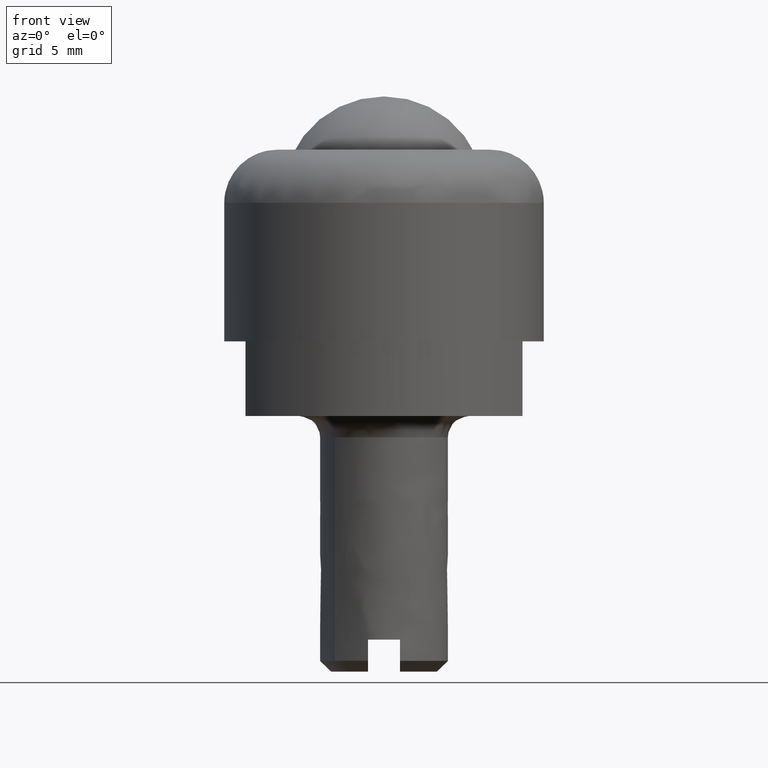
[diagram: clean part render]
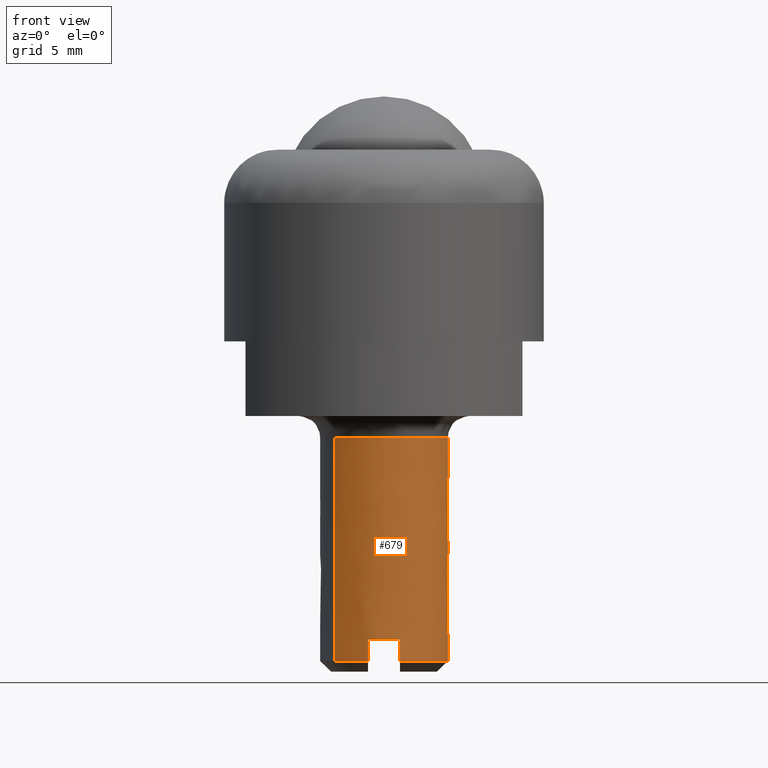
[diagram: same view with one face highlighted and labeled with its STEP entity id]
A machine part, front view. The second image highlights one B-rep face of the part: STEP entity #679.
In plain terms, the highlighted face is a freeform B-spline surface patch.
Its self-contained STEP definition (entity closure, byte-faithful):
#361=CARTESIAN_POINT('',(-2.297376285157198,-1.929264679715385,-4.499999999978565));
#362=VERTEX_POINT('',#361);
#372=CARTESIAN_POINT('',(0.018831363929760,-2.999940896039877,-4.499999999987888));
#373=VERTEX_POINT('',#372);
#374=CARTESIAN_POINT('',(0.018831363929760,-2.999940896039877,-4.499999999987888));
#375=CARTESIAN_POINT('',(-0.262586958928699,-3.001826207138336,-4.499999999986756));
#376=CARTESIAN_POINT('',(-0.729656200041531,-2.938454339764050,-4.499999999984865));
#377=CARTESIAN_POINT('',(-1.282814882015373,-2.725280543365840,-4.499999999982632));
#378=CARTESIAN_POINT('',(-1.801366331915164,-2.426864552362119,-4.499999999980565));
#379=CARTESIAN_POINT('',(-2.112079807213722,-2.150123400164984,-4.499999999979299));
#380=CARTESIAN_POINT('',(-2.297376285157198,-1.929264679715385,-4.499999999978565));
#381=B_SPLINE_CURVE_WITH_KNOTS('',3,(#374,#375,#376,#377,#378,#379,#380),.UNSPECIFIED.,.F.,.U.,(4,1,1,1,4),(7.144191E-009,0.844233579055024,1.400188935668945,1.770827309914230,2.635653062702565),.UNSPECIFIED.);
#382=EDGE_CURVE('',#373,#362,#381,.T.);
#384=CARTESIAN_POINT('',(3.0,0.0,-4.500000000000000));
#385=VERTEX_POINT('',#384);
#386=CARTESIAN_POINT('',(3.0,0.0,-4.500000000000000));
#387=CARTESIAN_POINT('',(3.000006240912432,-0.146673114847659,-4.499999999999990));
#388=CARTESIAN_POINT('',(2.976654959805862,-0.464465626790200,-4.499999999999895));
#389=CARTESIAN_POINT('',(2.880662459033303,-0.870364619055745,-4.499999999999489));
#390=CARTESIAN_POINT('',(2.722713844273737,-1.281629016111951,-4.499999999998861));
#391=CARTESIAN_POINT('',(2.522333899929042,-1.647443423377392,-4.499999999998020));
#392=CARTESIAN_POINT('',(2.221751610431138,-2.034708831147780,-4.499999999996815));
#393=CARTESIAN_POINT('',(1.890219505529803,-2.344723630932625,-4.499999999995429));
#394=CARTESIAN_POINT('',(1.536116594366673,-2.586489488102188,-4.499999999994072));
#395=CARTESIAN_POINT('',(1.175961747360268,-2.769773325008205,-4.499999999992551));
#396=CARTESIAN_POINT('',(0.678488677924484,-2.943703732898391,-4.499999999990571));
#397=CARTESIAN_POINT('',(0.275513082453917,-2.998405812810693,-4.499999999988905));
#398=CARTESIAN_POINT('',(0.018831363929760,-2.999940896039877,-4.499999999987888));
#399=B_SPLINE_CURVE_WITH_KNOTS('',3,(#386,#387,#388,#389,#390,#391,#392,#393,#394,#395,#396,#397,#398),.UNSPECIFIED.,.F.,.U.,(4,1,1,1,1,1,1,1,1,1,4),(0.000000010308079,0.440021902413905,0.953382520647966,1.246734357943187,1.760097363153209,2.200125313358284,2.713471685983104,3.116830370079649,3.483520956439546,3.923549701219097,4.693586707976048),.UNSPECIFIED.);
#400=EDGE_CURVE('',#385,#373,#399,.T.);
#402=CARTESIAN_POINT('',(2.999763132611336,0.037698119658957,-4.499999999975778));
#403=VERTEX_POINT('',#402);
#404=CARTESIAN_POINT('',(2.999763132611336,0.037698119658957,-4.499999999975778));
#405=CARTESIAN_POINT('',(3.0,0.0,-4.500000000000000));
#406=QUASI_UNIFORM_CURVE('',1,(#404,#405),.UNSPECIFIED.,.F.,.U.);
#407=EDGE_CURVE('',#403,#385,#406,.T.);
#456=CARTESIAN_POINT('',(2.297376285157198,1.929264679715385,-4.499999999978565));
#457=VERTEX_POINT('',#456);
#458=CARTESIAN_POINT('',(2.297376285157198,1.929264679715385,-4.499999999978565));
#459=CARTESIAN_POINT('',(2.414567285738554,1.789742229943044,-4.499999999978098));
#460=CARTESIAN_POINT('',(2.580393917142168,1.551114610321021,-4.499999999977429));
#461=CARTESIAN_POINT('',(2.776837341436247,1.157319441589511,-4.499999999976658));
#462=CARTESIAN_POINT('',(2.942515193586482,0.680088250811843,-4.499999999975969));
#463=CARTESIAN_POINT('',(2.996733390656589,0.284203690267259,-4.499999999975805));
#464=CARTESIAN_POINT('',(2.999763132611336,0.037698119658957,-4.499999999975778));
#465=B_SPLINE_CURVE_WITH_KNOTS('',3,(#458,#459,#460,#461,#462,#463,#464),.UNSPECIFIED.,.F.,.U.,(4,1,1,1,4),(4.451588E-009,0.546625421119864,0.868170554333988,1.318329389899596,2.057883316596328),.UNSPECIFIED.);
#466=EDGE_CURVE('',#457,#403,#465,.T.);
#531=CARTESIAN_POINT('',(2.297376290498585,1.929264673354842,-14.999999999999799));
#532=VERTEX_POINT('',#531);
#533=CARTESIAN_POINT('',(2.297376285157198,1.929264679715385,-4.499999999978565));
#534=CARTESIAN_POINT('',(2.297376290498585,1.929264673354842,-14.999999999999799));
#535=QUASI_UNIFORM_CURVE('',1,(#533,#534),.UNSPECIFIED.,.F.,.U.);
#536=EDGE_CURVE('',#457,#532,#535,.T.);
#573=CARTESIAN_POINT('',(-2.297376290498585,-1.929264673354842,-14.999999999999799));
#574=VERTEX_POINT('',#573);
#593=CARTESIAN_POINT('',(-2.297376285157198,-1.929264679715385,-4.499999999978565));
#594=CARTESIAN_POINT('',(-2.297376290498585,-1.929264673354842,-14.999999999999799));
#595=QUASI_UNIFORM_CURVE('',1,(#593,#594),.UNSPECIFIED.,.F.,.U.);
#596=EDGE_CURVE('',#362,#574,#595,.T.);
#601=CARTESIAN_POINT('',(2.297376296188659,1.929264666579077,-4.237499999975177));
#602=CARTESIAN_POINT('',(4.226640962767736,-0.368111629609582,-4.237499999975177));
#603=CARTESIAN_POINT('',(1.929264666579077,-2.297376296188659,-4.237499999975177));
#604=CARTESIAN_POINT('',(-0.368111629609582,-4.226640962767736,-4.237499999975177));
#605=CARTESIAN_POINT('',(-2.297376296188659,-1.929264666579077,-4.237499999975177));
#606=CARTESIAN_POINT('',(2.297376296188659,1.929264666579077,-15.269062500000411));
#607=CARTESIAN_POINT('',(4.226640962767736,-0.368111629609582,-15.269062500000411));
#608=CARTESIAN_POINT('',(1.929264666579077,-2.297376296188659,-15.269062500000411));
#609=CARTESIAN_POINT('',(-0.368111629609582,-4.226640962767736,-15.269062500000411));
#610=CARTESIAN_POINT('',(-2.297376296188659,-1.929264666579077,-15.269062500000411));
#618=(BOUNDED_SURFACE()B_SPLINE_SURFACE(2,1,((#601,#606),(#602,#607),(#603,#608),(#604,#609),(#605,#610)),.UNSPECIFIED.,.F.,.F.,.U.)B_SPLINE_SURFACE_WITH_KNOTS((3,2,3),(2,2),(0.0,4.970562748477139,9.941125496954278),(0.0,11.031562500025240),.UNSPECIFIED.)GEOMETRIC_REPRESENTATION_ITEM()RATIONAL_B_SPLINE_SURFACE(((1.0,1.0),(0.707106781186548,0.707106781186548),(1.0,1.0),(0.707106781186548,0.707106781186548),(1.0,1.0)))REPRESENTATION_ITEM('')SURFACE());
#619=ORIENTED_EDGE('',*,*,#382,.T.);
#620=ORIENTED_EDGE('',*,*,#596,.T.);
#621=CARTESIAN_POINT('',(-0.750000000000000,-2.904737509655565,-14.999999999999799));
#622=VERTEX_POINT('',#621);
#623=CARTESIAN_POINT('',(-0.750000000000000,-2.904737509655565,-14.999999999999799));
#624=CARTESIAN_POINT('',(-0.918730538576644,-2.861185202999421,-14.999999999999780));
#625=CARTESIAN_POINT('',(-1.257724884143169,-2.741321428846136,-14.999999999999829));
#626=CARTESIAN_POINT('',(-1.798052388324045,-2.432772371839064,-14.999999999999780));
#627=CARTESIAN_POINT('',(-2.129331706655839,-2.129489475651198,-14.999999999999829));
#628=CARTESIAN_POINT('',(-2.297376290498585,-1.929264673354842,-14.999999999999799));
#629=B_SPLINE_CURVE_WITH_KNOTS('',3,(#623,#624,#625,#626,#627,#628),.UNSPECIFIED.,.F.,.U.,(4,1,1,4),(4.335925E-009,0.522782825220151,1.074605363878708,1.858782903108684),.UNSPECIFIED.);
#630=EDGE_CURVE('',#622,#574,#629,.T.);
#631=ORIENTED_EDGE('',*,*,#630,.F.);
#632=CARTESIAN_POINT('',(-0.750000000000000,-2.904737509655565,-14.0));
#633=VERTEX_POINT('',#632);
#634=CARTESIAN_POINT('',(-0.750000000000000,-2.904737509655565,-14.999999999999799));
#635=CARTESIAN_POINT('',(-0.750000000000000,-2.904737509655565,-14.0));
#636=QUASI_UNIFORM_CURVE('',1,(#634,#635),.UNSPECIFIED.,.F.,.U.);
#637=EDGE_CURVE('',#622,#633,#636,.T.);
#638=ORIENTED_EDGE('',*,*,#637,.T.);
#639=CARTESIAN_POINT('',(0.750000000000000,-2.904737509655585,-14.0));
#640=VERTEX_POINT('',#639);
#641=CARTESIAN_POINT('',(-0.750000000000000,-2.904737509655565,-14.0));
#642=CARTESIAN_POINT('',(-0.535932102528158,-2.960050980015414,-14.000000000000011));
#643=CARTESIAN_POINT('',(-0.032593235239280,-3.032000108550625,-14.0));
#644=CARTESIAN_POINT('',(0.474778400079238,-2.975931361972501,-13.999999999999989));
#645=CARTESIAN_POINT('',(0.750000000000000,-2.904737509655585,-14.0));
#646=B_SPLINE_CURVE_WITH_KNOTS('',3,(#641,#642,#643,#644,#645),.UNSPECIFIED.,.F.,.U.,(4,1,4),(2.646690E-009,0.663290318865950,1.516085469469353),.UNSPECIFIED.);
#647=EDGE_CURVE('',#633,#640,#646,.T.);
#648=ORIENTED_EDGE('',*,*,#647,.T.);
#649=CARTESIAN_POINT('',(0.750000000000000,-2.904737509655565,-14.999999999999799));
#650=VERTEX_POINT('',#649);
#651=CARTESIAN_POINT('',(0.750000000000000,-2.904737509655585,-14.0));
#652=CARTESIAN_POINT('',(0.750000000000000,-2.904737509655565,-14.999999999999799));
#653=QUASI_UNIFORM_CURVE('',1,(#651,#652),.UNSPECIFIED.,.F.,.U.);
#654=EDGE_CURVE('',#640,#650,#653,.T.);
#655=ORIENTED_EDGE('',*,*,#654,.T.);
#656=CARTESIAN_POINT('',(2.297376290498585,1.929264673354842,-14.999999999999799));
#657=CARTESIAN_POINT('',(2.439260004229475,1.760382429599017,-14.999999999999821));
#658=CARTESIAN_POINT('',(2.628292116861062,1.476829499436001,-14.999999999999810));
#659=CARTESIAN_POINT('',(2.840142632823668,1.001034428381689,-14.999999999999730));
#660=CARTESIAN_POINT('',(2.962155678664470,0.558781980245208,-15.000000000000030));
#661=CARTESIAN_POINT('',(3.018886137247774,-0.007335937823931,-14.999999999999750));
#662=CARTESIAN_POINT('',(2.969476942415562,-0.536265168054002,-14.999999999999680));
#663=CARTESIAN_POINT('',(2.830579416167714,-1.022236501887917,-14.999999999999920));
#664=CARTESIAN_POINT('',(2.626365610226126,-1.484428406068164,-14.999999999999959));
#665=CARTESIAN_POINT('',(2.340952227790165,-1.903994136213181,-14.999999999999080));
#666=CARTESIAN_POINT('',(1.917802374285131,-2.329680296525880,-15.000000000000300));
#667=CARTESIAN_POINT('',(1.415015059058669,-2.676018333248661,-14.999999999999529));
#668=CARTESIAN_POINT('',(0.978836149777860,-2.845704471710226,-14.999999999999851));
#669=CARTESIAN_POINT('',(0.750000000000000,-2.904737509655565,-14.999999999999799));
#670=B_SPLINE_CURVE_WITH_KNOTS('',3,(#656,#657,#658,#659,#660,#661,#662,#663,#664,#665,#666,#667,#668,#669),.UNSPECIFIED.,.F.,.U.,(4,1,1,1,1,1,1,1,1,1,1,4),(0.000000039089234,0.661702313158501,1.016196477775161,1.559749873765195,2.032406586098823,2.717747422827423,3.143126564809698,3.544874372813282,4.230225463572015,4.655615606213841,5.340963501486838,6.049936427869705),.UNSPECIFIED.);
#671=EDGE_CURVE('',#532,#650,#670,.T.);
#672=ORIENTED_EDGE('',*,*,#671,.F.);
#673=ORIENTED_EDGE('',*,*,#536,.F.);
#674=ORIENTED_EDGE('',*,*,#466,.T.);
#675=ORIENTED_EDGE('',*,*,#407,.T.);
#676=ORIENTED_EDGE('',*,*,#400,.T.);
#677=EDGE_LOOP('',(#619,#620,#631,#638,#648,#655,#672,#673,#674,#675,#676));
#678=FACE_OUTER_BOUND('',#677,.T.);
#679=ADVANCED_FACE('',(#678),#618,.T.);